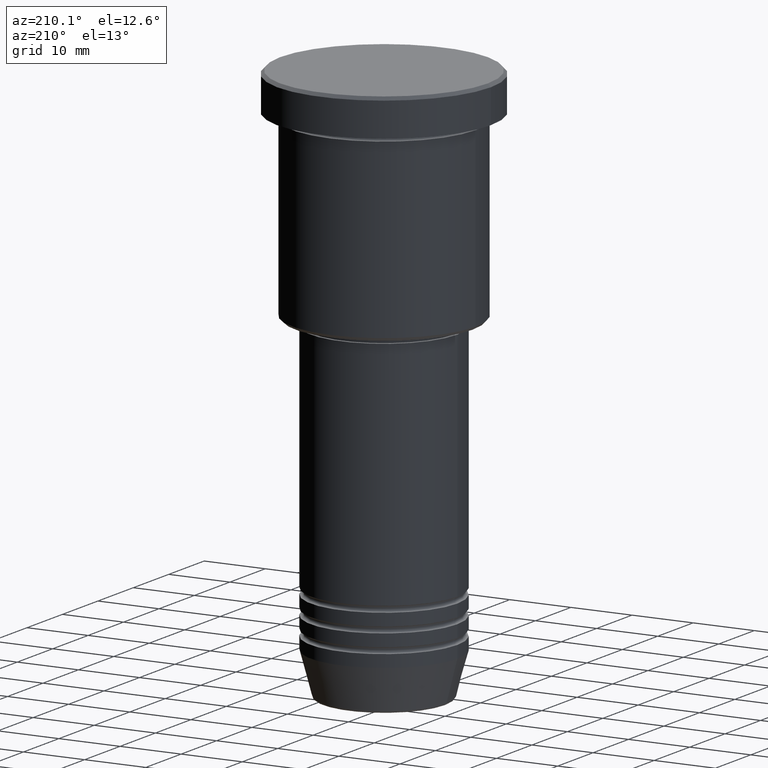
[diagram: clean part render]
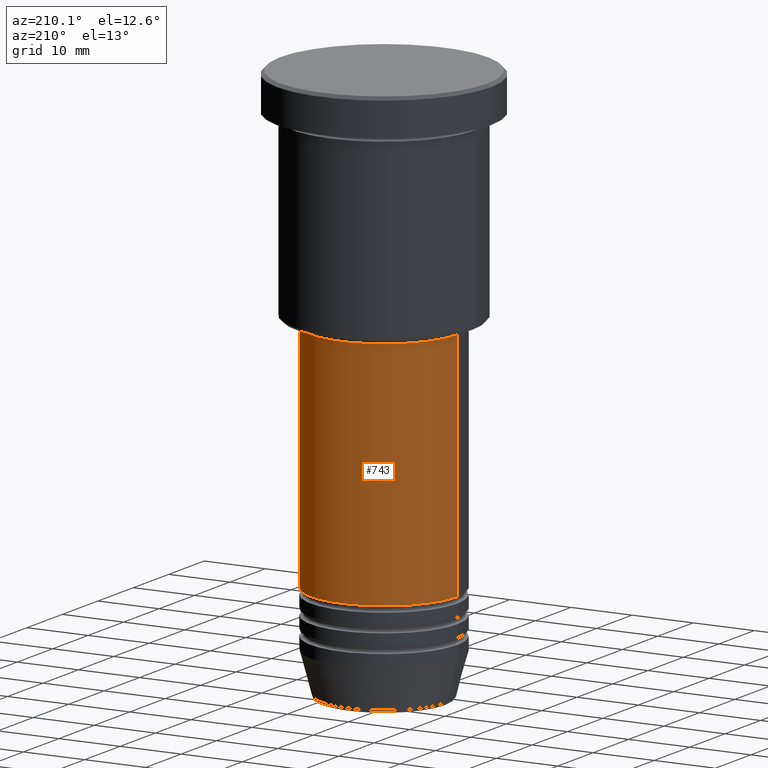
[diagram: same view with one face highlighted and labeled with its STEP entity id]
A machine part, auxiliary view. The second image highlights one B-rep face of the part: STEP entity #743.
In plain terms, the highlighted cylindrical surface (partial cylindrical patch) has radius 12 mm, axis along (-0, -0, 1).
Its self-contained STEP definition (entity closure, byte-faithful):
#22 = CARTESIAN_POINT ( 'NONE',  ( 12.00000000000000000, 0.000000000000000000, 0.000000000000000000 ) ) ;
#63 = ORIENTED_EDGE ( 'NONE', *, *, #656, .F. ) ;
#78 = DIRECTION ( 'NONE',  ( 1.000000000000000000, 0.000000000000000000, 0.000000000000000000 ) ) ;
#90 = AXIS2_PLACEMENT_3D ( 'NONE', #956, #461, #735 ) ;
#110 = EDGE_CURVE ( 'NONE', #621, #200, #306, .T. ) ;
#141 = CARTESIAN_POINT ( 'NONE',  ( 12.00000000000000000, 0.000000000000000000, -74.99999999999997158 ) ) ;
#163 = DIRECTION ( 'NONE',  ( -0.000000000000000000, -0.000000000000000000, 1.000000000000000000 ) ) ;
#200 = VERTEX_POINT ( 'NONE', #577 ) ;
#216 = CARTESIAN_POINT ( 'NONE',  ( 0.000000000000000000, 0.000000000000000000, -74.99999999999997158 ) ) ;
#225 = EDGE_CURVE ( 'NONE', #1148, #1051, #984, .T. ) ;
#299 = AXIS2_PLACEMENT_3D ( 'NONE', #216, #1034, #303 ) ;
#303 = DIRECTION ( 'NONE',  ( 1.000000000000000000, 0.000000000000000000, 0.000000000000000000 ) ) ;
#306 = LINE ( 'NONE', #678, #993 ) ;
#369 = CARTESIAN_POINT ( 'NONE',  ( -12.00000000000000000, 1.469576158976823947E-15, -74.99999999999997158 ) ) ;
#389 = DIRECTION ( 'NONE',  ( -0.000000000000000000, -0.000000000000000000, 1.000000000000000000 ) ) ;
#410 = DIRECTION ( 'NONE',  ( -0.000000000000000000, -0.000000000000000000, 1.000000000000000000 ) ) ;
#437 = CYLINDRICAL_SURFACE ( 'NONE', #1038, 12.00000000000000000 ) ;
#461 = DIRECTION ( 'NONE',  ( -0.000000000000000000, -0.000000000000000000, 1.000000000000000000 ) ) ;
#468 = VECTOR ( 'NONE', #389, 1000.000000000000000 ) ;
#471 = CIRCLE ( 'NONE', #299, 12.00000000000000000 ) ;
#577 = CARTESIAN_POINT ( 'NONE',  ( -12.00000000000000000, 1.469576158976823947E-15, -36.99999999999996447 ) ) ;
#621 = VERTEX_POINT ( 'NONE', #369 ) ;
#656 = EDGE_CURVE ( 'NONE', #1051, #200, #1119, .T. ) ;
#678 = CARTESIAN_POINT ( 'NONE',  ( -12.00000000000000000, 1.469576158976823947E-15, 0.000000000000000000 ) ) ;
#735 = DIRECTION ( 'NONE',  ( 1.000000000000000000, 0.000000000000000000, 0.000000000000000000 ) ) ;
#743 = ADVANCED_FACE ( 'NONE', ( #792 ), #437, .T. ) ;
#780 = CARTESIAN_POINT ( 'NONE',  ( 0.000000000000000000, 0.000000000000000000, 0.000000000000000000 ) ) ;
#789 = EDGE_LOOP ( 'NONE', ( #949, #927, #63, #1153 ) ) ;
#792 = FACE_OUTER_BOUND ( 'NONE', #789, .T. ) ;
#927 = ORIENTED_EDGE ( 'NONE', *, *, #110, .T. ) ;
#949 = ORIENTED_EDGE ( 'NONE', *, *, #1115, .T. ) ;
#956 = CARTESIAN_POINT ( 'NONE',  ( 0.000000000000000000, 0.000000000000000000, -36.99999999999996447 ) ) ;
#984 = LINE ( 'NONE', #22, #468 ) ;
#993 = VECTOR ( 'NONE', #410, 1000.000000000000000 ) ;
#1022 = CARTESIAN_POINT ( 'NONE',  ( 12.00000000000000000, 0.000000000000000000, -36.99999999999996447 ) ) ;
#1034 = DIRECTION ( 'NONE',  ( -0.000000000000000000, -0.000000000000000000, 1.000000000000000000 ) ) ;
#1038 = AXIS2_PLACEMENT_3D ( 'NONE', #780, #163, #78 ) ;
#1051 = VERTEX_POINT ( 'NONE', #1022 ) ;
#1115 = EDGE_CURVE ( 'NONE', #1148, #621, #471, .T. ) ;
#1119 = CIRCLE ( 'NONE', #90, 12.00000000000000000 ) ;
#1148 = VERTEX_POINT ( 'NONE', #141 ) ;
#1153 = ORIENTED_EDGE ( 'NONE', *, *, #225, .F. ) ;